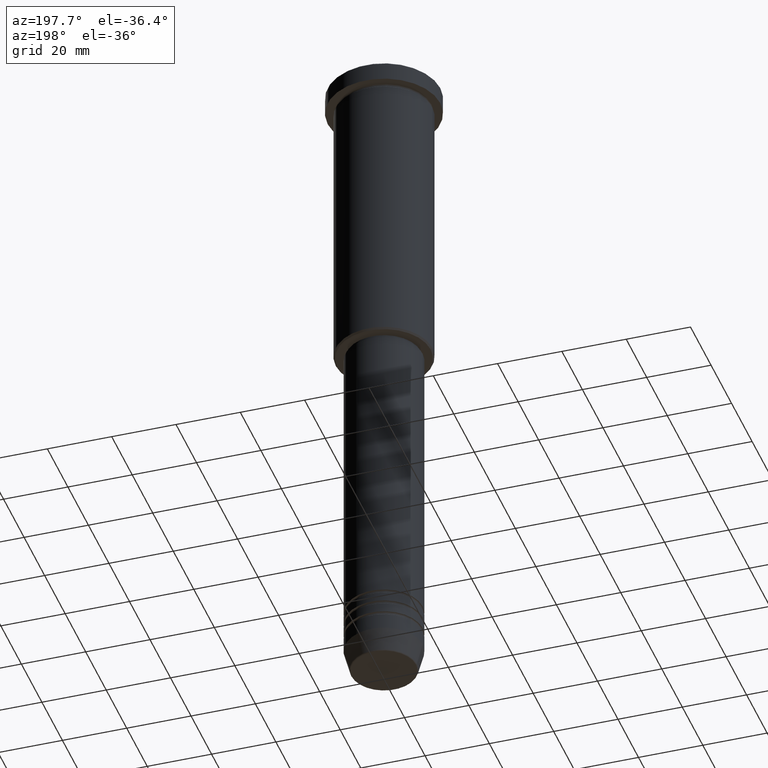
[diagram: clean part render]
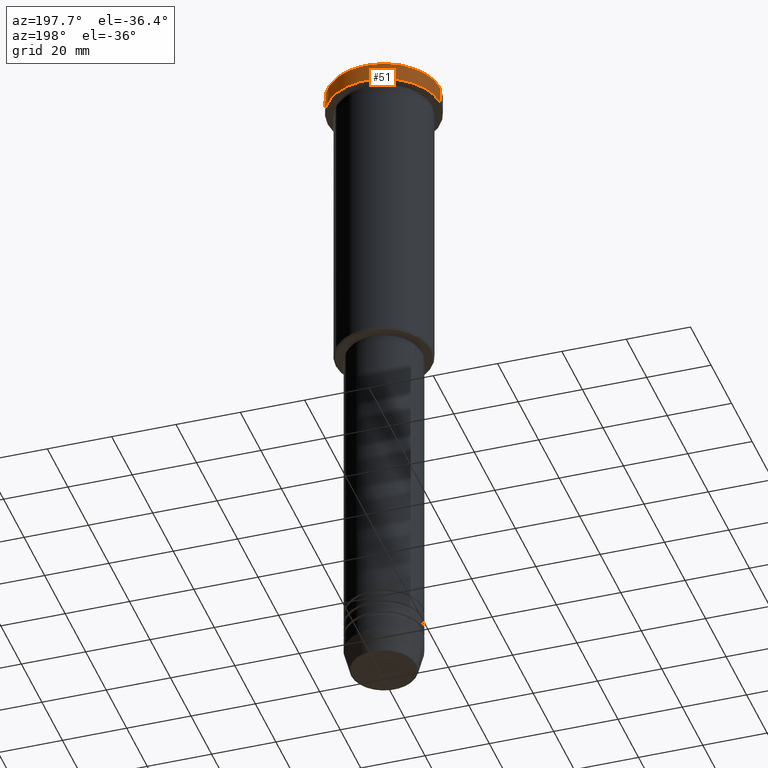
[diagram: same view with one face highlighted and labeled with its STEP entity id]
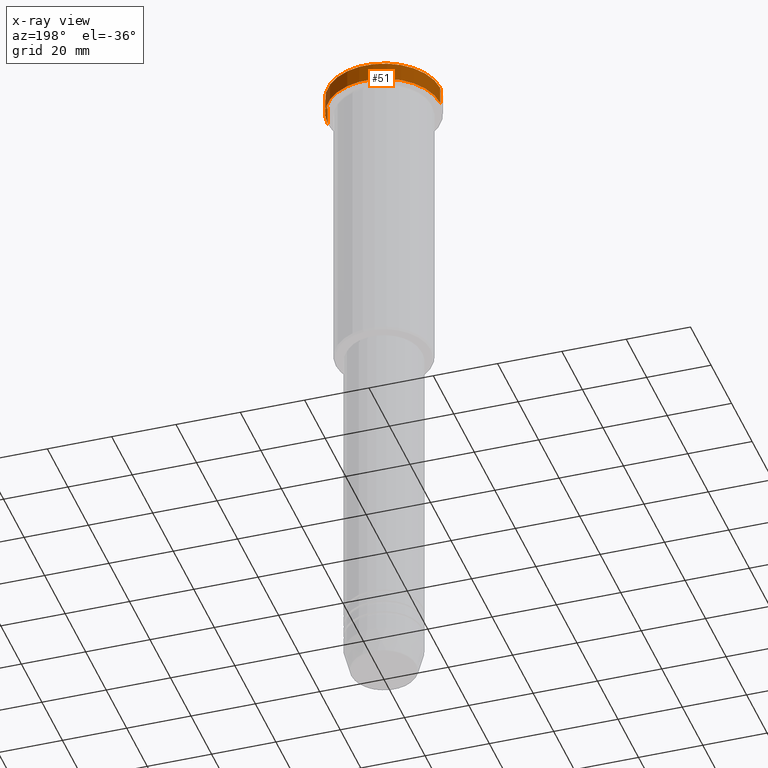
[diagram: x-ray of the same camera — body ghosted, the highlighted face saturated]
A machine part, auxiliary view. The second image highlights one B-rep face of the part: STEP entity #51.
The next image is the same camera in x-ray: the body ghosted, the highlighted face saturated — about 0% of this face is hidden behind the body in this view.
In plain terms, the highlighted cylindrical surface (partial cylindrical patch) has radius 17.5 mm, axis along (-0, -0, 1).
Its self-contained STEP definition (entity closure, byte-faithful):
#12 = VERTEX_POINT ( 'NONE', #907 ) ;
#40 = CARTESIAN_POINT ( 'NONE',  ( 17.50000000000000000, 0.000000000000000000, -5.999999999999995559 ) ) ;
#51 = ADVANCED_FACE ( 'NONE', ( #246 ), #352, .T. ) ;
#56 = EDGE_CURVE ( 'NONE', #302, #739, #516, .T. ) ;
#144 = EDGE_CURVE ( 'NONE', #739, #12, #480, .T. ) ;
#147 = LINE ( 'NONE', #417, #183 ) ;
#169 = CARTESIAN_POINT ( 'NONE',  ( 0.000000000000000000, 0.000000000000000000, 0.000000000000000000 ) ) ;
#183 = VECTOR ( 'NONE', #1052, 1000.000000000000000 ) ;
#196 = AXIS2_PLACEMENT_3D ( 'NONE', #563, #1098, #648 ) ;
#203 = DIRECTION ( 'NONE',  ( -0.000000000000000000, -0.000000000000000000, 1.000000000000000000 ) ) ;
#241 = VERTEX_POINT ( 'NONE', #40 ) ;
#246 = FACE_OUTER_BOUND ( 'NONE', #1145, .T. ) ;
#302 = VERTEX_POINT ( 'NONE', #620 ) ;
#317 = ORIENTED_EDGE ( 'NONE', *, *, #56, .T. ) ;
#337 = ORIENTED_EDGE ( 'NONE', *, *, #144, .T. ) ;
#352 = CYLINDRICAL_SURFACE ( 'NONE', #899, 17.50000000000000000 ) ;
#379 = ORIENTED_EDGE ( 'NONE', *, *, #994, .F. ) ;
#417 = CARTESIAN_POINT ( 'NONE',  ( 17.50000000000000000, 0.000000000000000000, 0.000000000000000000 ) ) ;
#418 = VECTOR ( 'NONE', #521, 1000.000000000000000 ) ;
#480 = CIRCLE ( 'NONE', #196, 17.50000000000000000 ) ;
#496 = AXIS2_PLACEMENT_3D ( 'NONE', #1096, #203, #644 ) ;
#516 = LINE ( 'NONE', #1154, #418 ) ;
#521 = DIRECTION ( 'NONE',  ( -0.000000000000000000, -0.000000000000000000, 1.000000000000000000 ) ) ;
#563 = CARTESIAN_POINT ( 'NONE',  ( 0.000000000000000000, 0.000000000000000000, -0.5000000000000559552 ) ) ;
#620 = CARTESIAN_POINT ( 'NONE',  ( -17.50000000000000000, 2.143131898507868248E-15, -5.999999999999995559 ) ) ;
#625 = DIRECTION ( 'NONE',  ( -0.000000000000000000, -0.000000000000000000, 1.000000000000000000 ) ) ;
#632 = CARTESIAN_POINT ( 'NONE',  ( -17.50000000000000000, 2.143131898507868248E-15, -0.5000000000000559552 ) ) ;
#644 = DIRECTION ( 'NONE',  ( 1.000000000000000000, 0.000000000000000000, 0.000000000000000000 ) ) ;
#648 = DIRECTION ( 'NONE',  ( 1.000000000000000000, 0.000000000000000000, 0.000000000000000000 ) ) ;
#707 = DIRECTION ( 'NONE',  ( 1.000000000000000000, 0.000000000000000000, 0.000000000000000000 ) ) ;
#718 = EDGE_CURVE ( 'NONE', #241, #302, #1015, .T. ) ;
#739 = VERTEX_POINT ( 'NONE', #632 ) ;
#766 = ORIENTED_EDGE ( 'NONE', *, *, #718, .T. ) ;
#899 = AXIS2_PLACEMENT_3D ( 'NONE', #169, #625, #707 ) ;
#907 = CARTESIAN_POINT ( 'NONE',  ( 17.50000000000000000, 0.000000000000000000, -0.5000000000000559552 ) ) ;
#994 = EDGE_CURVE ( 'NONE', #241, #12, #147, .T. ) ;
#1015 = CIRCLE ( 'NONE', #496, 17.50000000000000000 ) ;
#1052 = DIRECTION ( 'NONE',  ( -0.000000000000000000, -0.000000000000000000, 1.000000000000000000 ) ) ;
#1096 = CARTESIAN_POINT ( 'NONE',  ( 0.000000000000000000, 0.000000000000000000, -5.999999999999995559 ) ) ;
#1098 = DIRECTION ( 'NONE',  ( 0.000000000000000000, 0.000000000000000000, -1.000000000000000000 ) ) ;
#1145 = EDGE_LOOP ( 'NONE', ( #766, #317, #337, #379 ) ) ;
#1154 = CARTESIAN_POINT ( 'NONE',  ( -17.50000000000000000, 2.143131898507868248E-15, 0.000000000000000000 ) ) ;